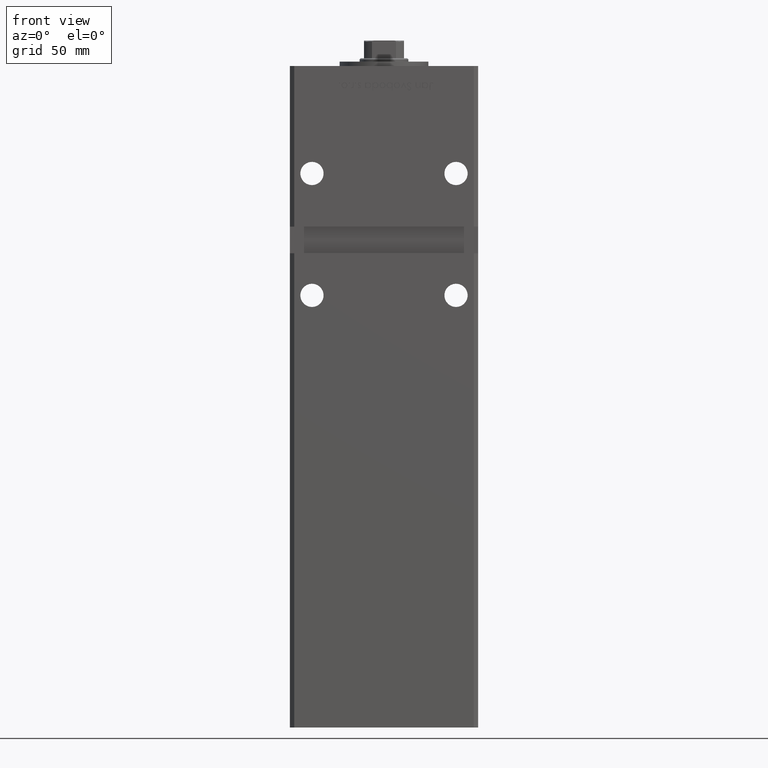
[diagram: clean part render]
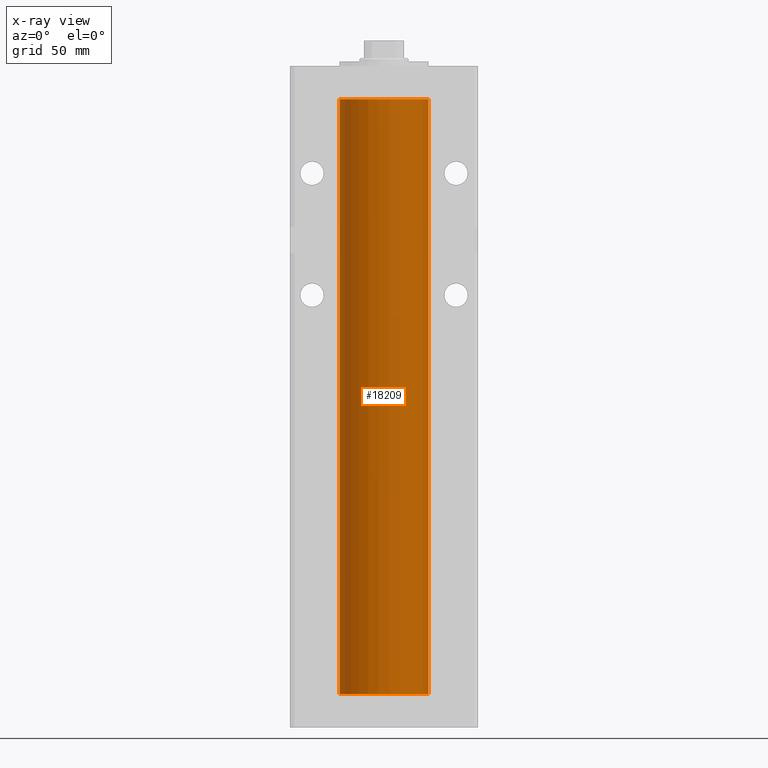
[diagram: x-ray — body ghosted, one internal face saturated and labeled with its STEP entity id]
A machine part, front view, then the same camera in x-ray: the body is ghosted and one INTERNAL B-rep face — a face not visible from any outside direction — is saturated and labeled: STEP entity #18209.
In plain terms, the highlighted cylindrical surface (partial cylindrical patch) has radius 20 mm, axis along (-0, -0, -1).
Its self-contained STEP definition (entity closure, byte-faithful):
#27 = CARTESIAN_POINT ( 'NONE',  ( -20.00000000000000000, 0.000000000000000000, 268.5000000000000000 ) ) ;
#278 = LINE ( 'NONE', #27, #35205 ) ;
#1234 = EDGE_CURVE ( 'NONE', #14313, #36061, #43523, .T. ) ;
#1703 = LINE ( 'NONE', #37462, #47986 ) ;
#1829 = DIRECTION ( 'NONE',  ( -1.000000000000000000, 0.000000000000000000, 0.000000000000000000 ) ) ;
#3522 = DIRECTION ( 'NONE',  ( -0.000000000000000000, -0.000000000000000000, -1.000000000000000000 ) ) ;
#6768 = ORIENTED_EDGE ( 'NONE', *, *, #1234, .F. ) ;
#7202 = ORIENTED_EDGE ( 'NONE', *, *, #15758, .T. ) ;
#7765 = VERTEX_POINT ( 'NONE', #46383 ) ;
#8638 = CIRCLE ( 'NONE', #27553, 20.00000000000000000 ) ;
#8863 = EDGE_CURVE ( 'NONE', #7765, #36061, #1703, .T. ) ;
#9975 = CARTESIAN_POINT ( 'NONE',  ( 0.000000000000000000, 0.000000000000000000, 0.000000000000000000 ) ) ;
#12742 = EDGE_LOOP ( 'NONE', ( #7202, #17766, #6768, #19433 ) ) ;
#14150 = CYLINDRICAL_SURFACE ( 'NONE', #47496, 20.00000000000000000 ) ;
#14313 = VERTEX_POINT ( 'NONE', #29723 ) ;
#15758 = EDGE_CURVE ( 'NONE', #30755, #7765, #8638, .T. ) ;
#17766 = ORIENTED_EDGE ( 'NONE', *, *, #8863, .T. ) ;
#18209 = ADVANCED_FACE ( 'NONE', ( #26278 ), #14150, .F. ) ;
#19433 = ORIENTED_EDGE ( 'NONE', *, *, #46725, .F. ) ;
#20337 = AXIS2_PLACEMENT_3D ( 'NONE', #9975, #38764, #43334 ) ;
#20756 = DIRECTION ( 'NONE',  ( -0.000000000000000000, 0.000000000000000000, 1.000000000000000000 ) ) ;
#25314 = CARTESIAN_POINT ( 'NONE',  ( 0.000000000000000000, 0.000000000000000000, 268.5000000000000000 ) ) ;
#25970 = CARTESIAN_POINT ( 'NONE',  ( -20.00000000000000000, 0.000000000000000000, 268.5000000000000000 ) ) ;
#26278 = FACE_OUTER_BOUND ( 'NONE', #12742, .T. ) ;
#27553 = AXIS2_PLACEMENT_3D ( 'NONE', #25314, #20756, #28813 ) ;
#28813 = DIRECTION ( 'NONE',  ( 1.000000000000000000, 0.000000000000000000, 0.000000000000000000 ) ) ;
#29723 = CARTESIAN_POINT ( 'NONE',  ( -20.00000000000000000, 0.000000000000000000, 0.000000000000000000 ) ) ;
#30755 = VERTEX_POINT ( 'NONE', #25970 ) ;
#35205 = VECTOR ( 'NONE', #3522, 1000.000000000000000 ) ;
#35422 = DIRECTION ( 'NONE',  ( -0.000000000000000000, -0.000000000000000000, -1.000000000000000000 ) ) ;
#36061 = VERTEX_POINT ( 'NONE', #48800 ) ;
#37462 = CARTESIAN_POINT ( 'NONE',  ( 20.00000000000000000, 2.449293598294706513E-15, 268.5000000000000000 ) ) ;
#38764 = DIRECTION ( 'NONE',  ( -0.000000000000000000, 0.000000000000000000, 1.000000000000000000 ) ) ;
#43216 = CARTESIAN_POINT ( 'NONE',  ( 0.000000000000000000, 0.000000000000000000, 268.5000000000000000 ) ) ;
#43334 = DIRECTION ( 'NONE',  ( 1.000000000000000000, 0.000000000000000000, 0.000000000000000000 ) ) ;
#43523 = CIRCLE ( 'NONE', #20337, 20.00000000000000000 ) ;
#46383 = CARTESIAN_POINT ( 'NONE',  ( 20.00000000000000000, 2.449293598294706513E-15, 268.5000000000000000 ) ) ;
#46725 = EDGE_CURVE ( 'NONE', #30755, #14313, #278, .T. ) ;
#47496 = AXIS2_PLACEMENT_3D ( 'NONE', #43216, #35422, #1829 ) ;
#47986 = VECTOR ( 'NONE', #49849, 1000.000000000000000 ) ;
#48800 = CARTESIAN_POINT ( 'NONE',  ( 20.00000000000000000, 2.449293598294706513E-15, 0.000000000000000000 ) ) ;
#49849 = DIRECTION ( 'NONE',  ( -0.000000000000000000, -0.000000000000000000, -1.000000000000000000 ) ) ;